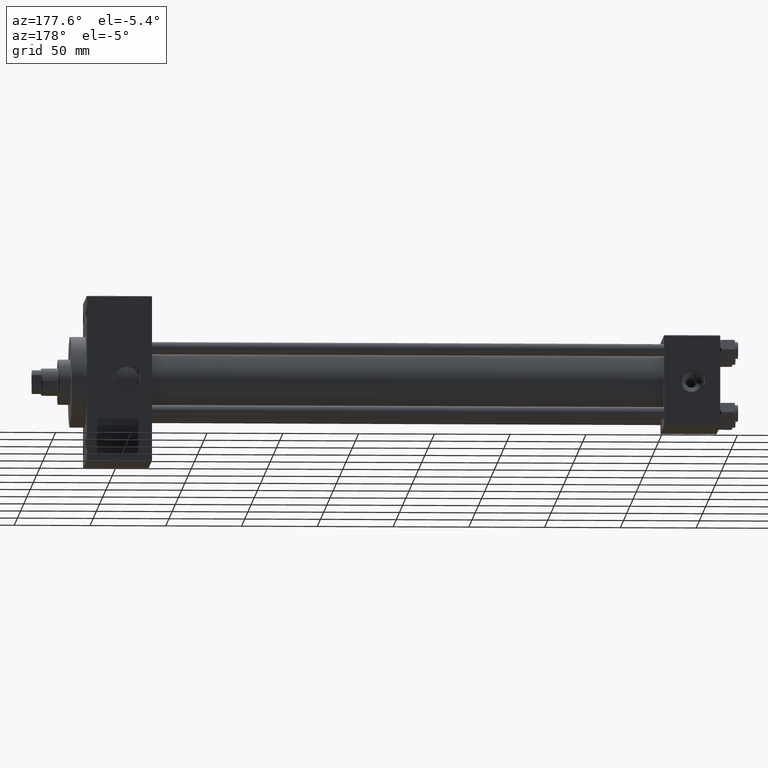
[diagram: clean part render]
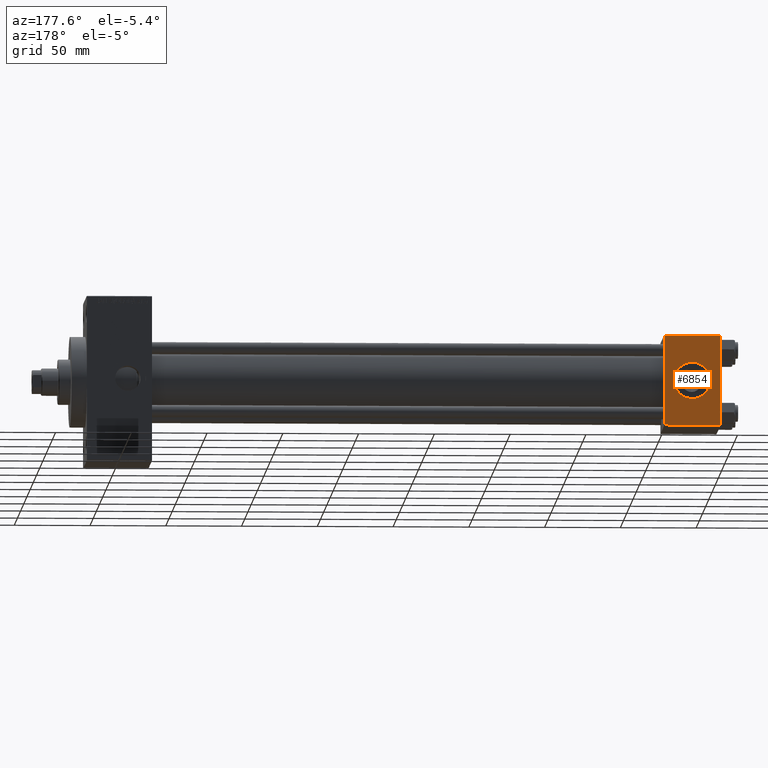
[diagram: same view with one face highlighted and labeled with its STEP entity id]
A machine part, auxiliary view. The second image highlights one B-rep face of the part: STEP entity #6854.
In plain terms, the highlighted planar face has unit normal (0, 1, 0).
Its self-contained STEP definition (entity closure, byte-faithful):
#1017 = VERTEX_POINT ( 'NONE', #11256 ) ;
#1582 = VERTEX_POINT ( 'NONE', #18603 ) ;
#2946 = CARTESIAN_POINT ( 'NONE',  ( 37.00000000000000000, 29.99999999999999289, 30.00000000000000000 ) ) ;
#3001 = CARTESIAN_POINT ( 'NONE',  ( 37.00000000000000000, 29.99999999999999289, 30.00000000000000000 ) ) ;
#3604 = EDGE_CURVE ( 'NONE', #1582, #32466, #18552, .T. ) ;
#3848 = AXIS2_PLACEMENT_3D ( 'NONE', #44743, #48231, #24809 ) ;
#4626 = EDGE_LOOP ( 'NONE', ( #18749, #44715 ) ) ;
#5546 = EDGE_CURVE ( 'NONE', #1582, #28449, #23198, .T. ) ;
#6324 = ORIENTED_EDGE ( 'NONE', *, *, #5546, .F. ) ;
#6368 = ORIENTED_EDGE ( 'NONE', *, *, #47044, .T. ) ;
#6854 = ADVANCED_FACE ( 'NONE', ( #45772, #33304 ), #26582, .T. ) ;
#7425 = DIRECTION ( 'NONE',  ( -0.000000000000000000, 1.000000000000000000, 0.000000000000000000 ) ) ;
#10052 = DIRECTION ( 'NONE',  ( -1.000000000000000000, 0.000000000000000000, 0.000000000000000000 ) ) ;
#11256 = CARTESIAN_POINT ( 'NONE',  ( 18.50000000000000000, 29.99999999999999289, -12.00000000000000178 ) ) ;
#11334 = VERTEX_POINT ( 'NONE', #22070 ) ;
#11570 = CARTESIAN_POINT ( 'NONE',  ( 37.00000000000000000, 29.99999999999999289, 29.50000000000000000 ) ) ;
#12534 = AXIS2_PLACEMENT_3D ( 'NONE', #45895, #27946, #23699 ) ;
#13336 = ORIENTED_EDGE ( 'NONE', *, *, #3604, .T. ) ;
#13360 = EDGE_CURVE ( 'NONE', #1017, #11334, #36365, .T. ) ;
#14149 = CIRCLE ( 'NONE', #3848, 12.00000000000000178 ) ;
#14751 = EDGE_CURVE ( 'NONE', #11334, #1017, #14149, .T. ) ;
#17442 = CARTESIAN_POINT ( 'NONE',  ( 37.00000000000000000, 29.99999999999999289, 29.50000000000000000 ) ) ;
#17517 = LINE ( 'NONE', #47929, #32648 ) ;
#17629 = VECTOR ( 'NONE', #30124, 1000.000000000000000 ) ;
#18125 = DIRECTION ( 'NONE',  ( 0.000000000000000000, -0.000000000000000000, 1.000000000000000000 ) ) ;
#18552 = LINE ( 'NONE', #11570, #27133 ) ;
#18603 = CARTESIAN_POINT ( 'NONE',  ( 0.000000000000000000, 29.99999999999999289, 29.50000000000000000 ) ) ;
#18749 = ORIENTED_EDGE ( 'NONE', *, *, #14751, .F. ) ;
#22070 = CARTESIAN_POINT ( 'NONE',  ( 18.50000000000000000, 29.99999999999999289, 12.00000000000000178 ) ) ;
#23198 = LINE ( 'NONE', #23678, #35010 ) ;
#23678 = CARTESIAN_POINT ( 'NONE',  ( 0.000000000000000000, 29.99999999999999289, 30.00000000000000000 ) ) ;
#23699 = DIRECTION ( 'NONE',  ( 0.000000000000000000, 0.000000000000000000, 1.000000000000000000 ) ) ;
#24189 = DIRECTION ( 'NONE',  ( 0.000000000000000000, 0.000000000000000000, -1.000000000000000000 ) ) ;
#24809 = DIRECTION ( 'NONE',  ( 0.000000000000000000, 0.000000000000000000, 1.000000000000000000 ) ) ;
#26582 = PLANE ( 'NONE',  #27129 ) ;
#27129 = AXIS2_PLACEMENT_3D ( 'NONE', #2946, #7425, #18125 ) ;
#27133 = VECTOR ( 'NONE', #48953, 1000.000000000000000 ) ;
#27946 = DIRECTION ( 'NONE',  ( 0.000000000000000000, 1.000000000000000000, 0.000000000000000000 ) ) ;
#28449 = VERTEX_POINT ( 'NONE', #29165 ) ;
#29165 = CARTESIAN_POINT ( 'NONE',  ( 0.000000000000000000, 29.99999999999999289, -29.50000000000000000 ) ) ;
#30124 = DIRECTION ( 'NONE',  ( 0.000000000000000000, 0.000000000000000000, -1.000000000000000000 ) ) ;
#32466 = VERTEX_POINT ( 'NONE', #17442 ) ;
#32648 = VECTOR ( 'NONE', #10052, 1000.000000000000000 ) ;
#33304 = FACE_OUTER_BOUND ( 'NONE', #42680, .T. ) ;
#35010 = VECTOR ( 'NONE', #24189, 1000.000000000000000 ) ;
#36365 = CIRCLE ( 'NONE', #12534, 12.00000000000000178 ) ;
#38796 = CARTESIAN_POINT ( 'NONE',  ( 37.00000000000000000, 29.99999999999999289, -29.50000000000000000 ) ) ;
#40094 = VERTEX_POINT ( 'NONE', #38796 ) ;
#41966 = ORIENTED_EDGE ( 'NONE', *, *, #49111, .T. ) ;
#42680 = EDGE_LOOP ( 'NONE', ( #41966, #6368, #6324, #13336 ) ) ;
#44715 = ORIENTED_EDGE ( 'NONE', *, *, #13360, .F. ) ;
#44743 = CARTESIAN_POINT ( 'NONE',  ( 18.50000000000000000, 29.99999999999999289, 0.000000000000000000 ) ) ;
#45772 = FACE_BOUND ( 'NONE', #4626, .T. ) ;
#45895 = CARTESIAN_POINT ( 'NONE',  ( 18.50000000000000000, 29.99999999999999289, 0.000000000000000000 ) ) ;
#47044 = EDGE_CURVE ( 'NONE', #40094, #28449, #17517, .T. ) ;
#47929 = CARTESIAN_POINT ( 'NONE',  ( 37.00000000000000000, 29.99999999999999289, -29.50000000000000000 ) ) ;
#48231 = DIRECTION ( 'NONE',  ( 0.000000000000000000, 1.000000000000000000, 0.000000000000000000 ) ) ;
#48953 = DIRECTION ( 'NONE',  ( 1.000000000000000000, 0.000000000000000000, 0.000000000000000000 ) ) ;
#49077 = LINE ( 'NONE', #3001, #17629 ) ;
#49111 = EDGE_CURVE ( 'NONE', #32466, #40094, #49077, .T. ) ;